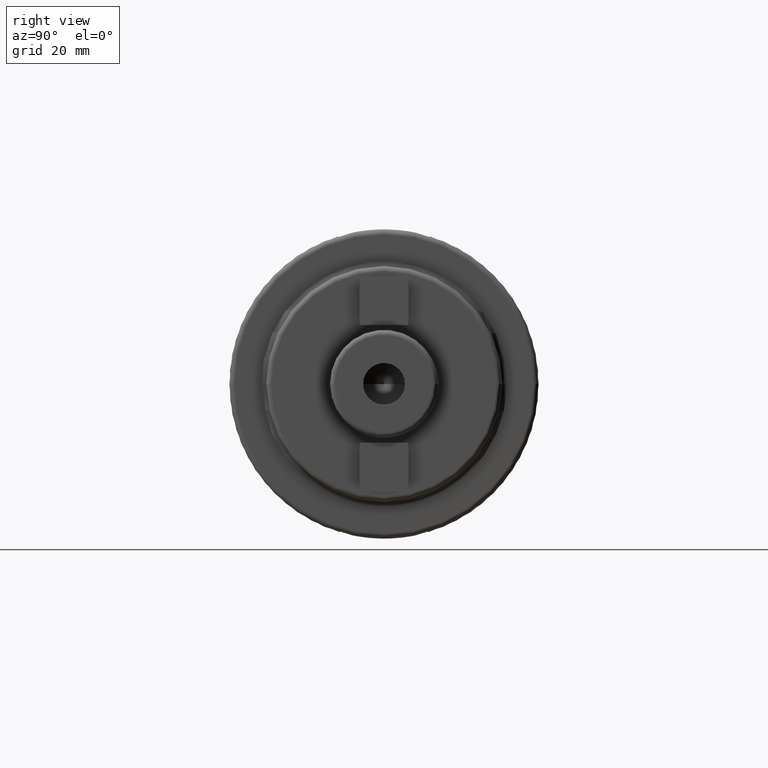
[diagram: clean part render]
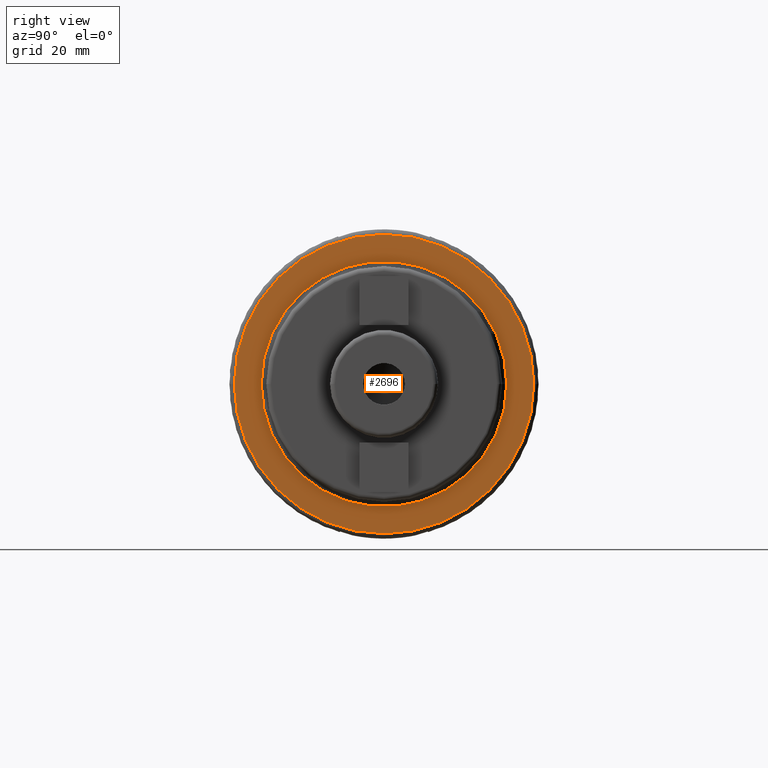
[diagram: same view with one face highlighted and labeled with its STEP entity id]
A machine part, right view. The second image highlights one B-rep face of the part: STEP entity #2696.
In plain terms, the highlighted planar face has unit normal (1, 0, 0).
Its self-contained STEP definition (entity closure, byte-faithful):
#816=CARTESIAN_POINT('',(2.7E1,0.E0,0.E0));
#817=DIRECTION('',(1.E0,0.E0,0.E0));
#818=DIRECTION('',(0.E0,1.E0,0.E0));
#819=AXIS2_PLACEMENT_3D('',#816,#817,#818);
#831=CARTESIAN_POINT('',(2.7E1,0.E0,0.E0));
#832=DIRECTION('',(-1.E0,0.E0,0.E0));
#833=DIRECTION('',(0.E0,1.E0,0.E0));
#834=AXIS2_PLACEMENT_3D('',#831,#832,#833);
#836=CARTESIAN_POINT('',(2.7E1,0.E0,0.E0));
#837=DIRECTION('',(1.E0,0.E0,0.E0));
#838=DIRECTION('',(0.E0,-1.E0,0.E0));
#839=AXIS2_PLACEMENT_3D('',#836,#837,#838);
#841=CARTESIAN_POINT('',(2.7E1,0.E0,0.E0));
#842=DIRECTION('',(1.E0,0.E0,0.E0));
#843=DIRECTION('',(0.E0,1.E0,0.E0));
#844=AXIS2_PLACEMENT_3D('',#841,#842,#843);
#1438=CARTESIAN_POINT('',(2.7E1,3.04875E1,0.E0));
#1439=VERTEX_POINT('',#1438);
#1440=CARTESIAN_POINT('',(2.7E1,-3.04875E1,0.E0));
#1441=VERTEX_POINT('',#1440);
#1527=CARTESIAN_POINT('',(2.7E1,-2.5E1,0.E0));
#1528=CARTESIAN_POINT('',(2.7E1,2.5E1,0.E0));
#1529=VERTEX_POINT('',#1527);
#1530=VERTEX_POINT('',#1528);
#2681=CARTESIAN_POINT('',(2.7E1,0.E0,0.E0));
#2682=DIRECTION('',(1.E0,0.E0,0.E0));
#2683=DIRECTION('',(0.E0,-1.E0,0.E0));
#2684=AXIS2_PLACEMENT_3D('',#2681,#2682,#2683);
#2685=PLANE('',#2684);
#2686=ORIENTED_EDGE('',*,*,#2676,.T.);
#2687=ORIENTED_EDGE('',*,*,#2660,.F.);
#2688=EDGE_LOOP('',(#2686,#2687));
#2689=FACE_OUTER_BOUND('',#2688,.F.);
#2691=ORIENTED_EDGE('',*,*,#2690,.T.);
#2693=ORIENTED_EDGE('',*,*,#2692,.T.);
#2694=EDGE_LOOP('',(#2691,#2693));
#2695=FACE_BOUND('',#2694,.F.);
#2696=ADVANCED_FACE('',(#2689,#2695),#2685,.T.);
#820=CIRCLE('',#819,3.04875E1);
#835=CIRCLE('',#834,3.04875E1);
#840=CIRCLE('',#839,2.5E1);
#845=CIRCLE('',#844,2.5E1);
#2660=EDGE_CURVE('',#1439,#1441,#820,.T.);
#2676=EDGE_CURVE('',#1439,#1441,#835,.T.);
#2690=EDGE_CURVE('',#1529,#1530,#840,.T.);
#2692=EDGE_CURVE('',#1530,#1529,#845,.T.);